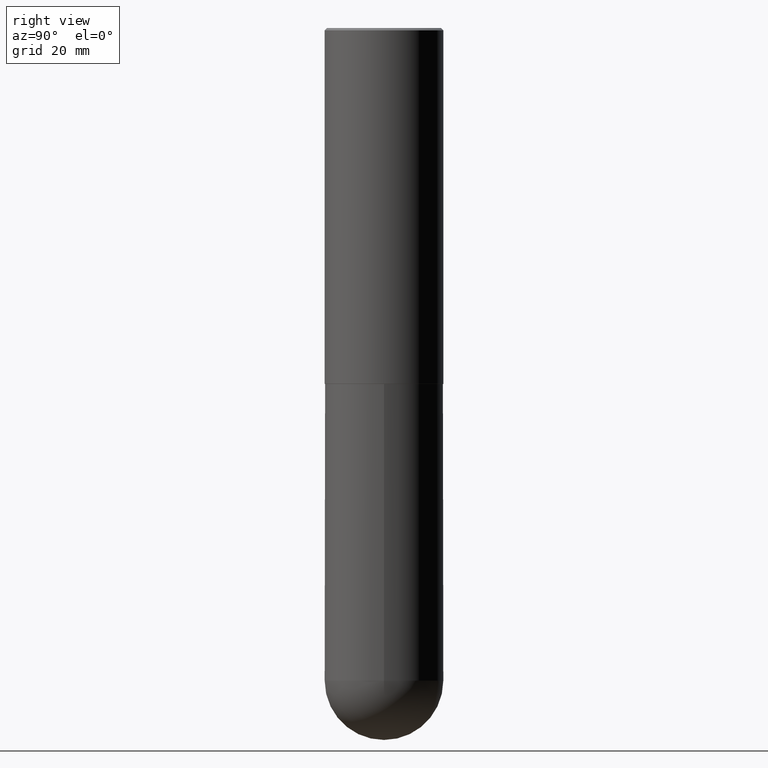
[diagram: clean part render]
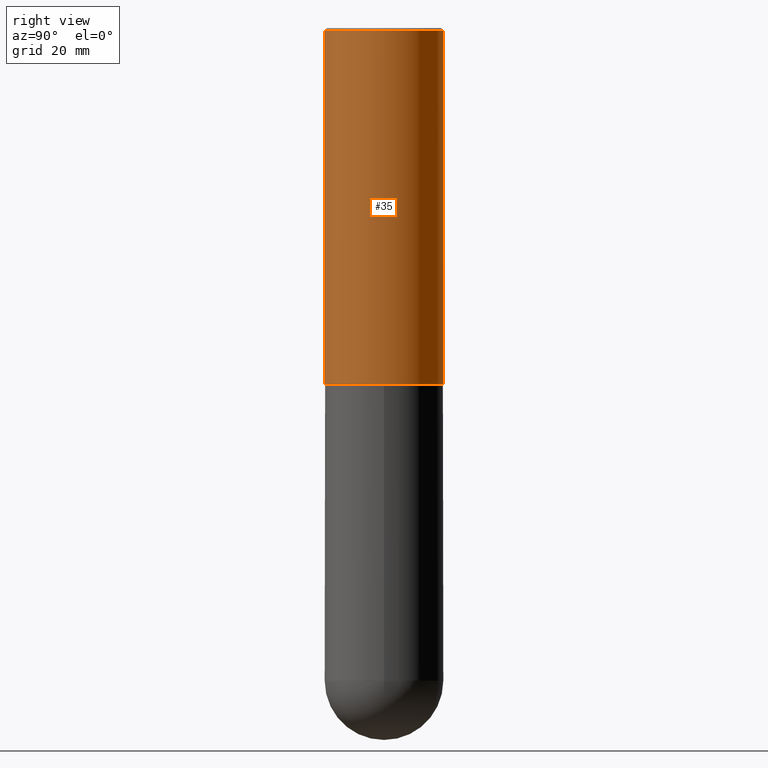
[diagram: same view with one face highlighted and labeled with its STEP entity id]
A machine part, right view. The second image highlights one B-rep face of the part: STEP entity #35.
In plain terms, the highlighted cylindrical surface (partial cylindrical patch) has radius 12.7 mm, axis along (-0, 0, 1).
Its self-contained STEP definition (entity closure, byte-faithful):
#30 = AXIS2_PLACEMENT_3D ( 'NONE', #303, #325, #47 ) ;
#32 = LINE ( 'NONE', #165, #176 ) ;
#35 = ADVANCED_FACE ( 'NONE', ( #362 ), #88, .T. ) ;
#47 = DIRECTION ( 'NONE',  ( -6.982962677686265922E-15, -1.000000000000000000, 3.492086673601155672E-15 ) ) ;
#64 = LINE ( 'NONE', #191, #343 ) ;
#66 = ORIENTED_EDGE ( 'NONE', *, *, #278, .F. ) ;
#87 = VERTEX_POINT ( 'NONE', #211 ) ;
#88 = CYLINDRICAL_SURFACE ( 'NONE', #30, 0.5000000000000002220 ) ;
#121 = AXIS2_PLACEMENT_3D ( 'NONE', #128, #249, #272 ) ;
#128 = CARTESIAN_POINT ( 'NONE',  ( 4.890092206365760820E-31, -6.984173347202349949E-17, -0.02000000000000010797 ) ) ;
#165 = CARTESIAN_POINT ( 'NONE',  ( 3.552713678800501718E-15, 0.5000000000000002220, -1.746043336800578625E-15 ) ) ;
#174 = CARTESIAN_POINT ( 'NONE',  ( 3.552713678800539584E-15, 0.4999999999999900080, -2.999000000000001886 ) ) ;
#176 = VECTOR ( 'NONE', #379, 39.37007874015748143 ) ;
#191 = CARTESIAN_POINT ( 'NONE',  ( -3.491481338843134539E-15, -0.5000000000000002220, 1.746043336800578625E-15 ) ) ;
#199 = VERTEX_POINT ( 'NONE', #352 ) ;
#211 = CARTESIAN_POINT ( 'NONE',  ( 3.491481338843133355E-15, 0.4999999999999999445, -0.02000000000000185310 ) ) ;
#227 = DIRECTION ( 'NONE',  ( -6.982962677686265133E-15, -1.000000000000000000, 3.278217592397113101E-15 ) ) ;
#249 = DIRECTION ( 'NONE',  ( -2.445046103182867255E-29, 3.492086673601156067E-15, 1.000000000000000000 ) ) ;
#257 = ORIENTED_EDGE ( 'NONE', *, *, #260, .F. ) ;
#260 = EDGE_CURVE ( 'NONE', #261, #87, #292, .T. ) ;
#261 = VERTEX_POINT ( 'NONE', #341 ) ;
#268 = AXIS2_PLACEMENT_3D ( 'NONE', #405, #382, #227 ) ;
#272 = DIRECTION ( 'NONE',  ( -6.982962677686265922E-15, -1.000000000000000000, 3.491643216902136408E-15 ) ) ;
#274 = CIRCLE ( 'NONE', #268, 0.5000000000000004441 ) ;
#278 = EDGE_CURVE ( 'NONE', #199, #261, #64, .T. ) ;
#282 = EDGE_CURVE ( 'NONE', #406, #87, #32, .T. ) ;
#284 = EDGE_LOOP ( 'NONE', ( #376, #380, #257, #66 ) ) ;
#292 = CIRCLE ( 'NONE', #121, 0.5000000000000000000 ) ;
#303 = CARTESIAN_POINT ( 'NONE',  ( 0.000000000000000000, 0.000000000000000000, 0.000000000000000000 ) ) ;
#313 = DIRECTION ( 'NONE',  ( -2.445046103182867535E-29, 3.492086673601156067E-15, 1.000000000000000000 ) ) ;
#325 = DIRECTION ( 'NONE',  ( -2.445046103182867255E-29, 3.492086673601156067E-15, 1.000000000000000000 ) ) ;
#341 = CARTESIAN_POINT ( 'NONE',  ( -3.430248998885764992E-15, -0.5000000000000001110, -0.01999999999999835937 ) ) ;
#343 = VECTOR ( 'NONE', #313, 39.37007874015748143 ) ;
#352 = CARTESIAN_POINT ( 'NONE',  ( -3.491481338843062752E-15, -0.5000000000000108802, -2.998999999999998778 ) ) ;
#362 = FACE_OUTER_BOUND ( 'NONE', #284, .T. ) ;
#376 = ORIENTED_EDGE ( 'NONE', *, *, #397, .T. ) ;
#379 = DIRECTION ( 'NONE',  ( -2.445046103182867535E-29, 3.492086673601156067E-15, 1.000000000000000000 ) ) ;
#380 = ORIENTED_EDGE ( 'NONE', *, *, #282, .T. ) ;
#382 = DIRECTION ( 'NONE',  ( -2.445046103182867255E-29, 3.492086673601156067E-15, 1.000000000000000000 ) ) ;
#397 = EDGE_CURVE ( 'NONE', #199, #406, #274, .T. ) ;
#405 = CARTESIAN_POINT ( 'NONE',  ( 7.332693263445419070E-29, -1.047276793412986863E-14, -2.999000000000000554 ) ) ;
#406 = VERTEX_POINT ( 'NONE', #174 ) ;